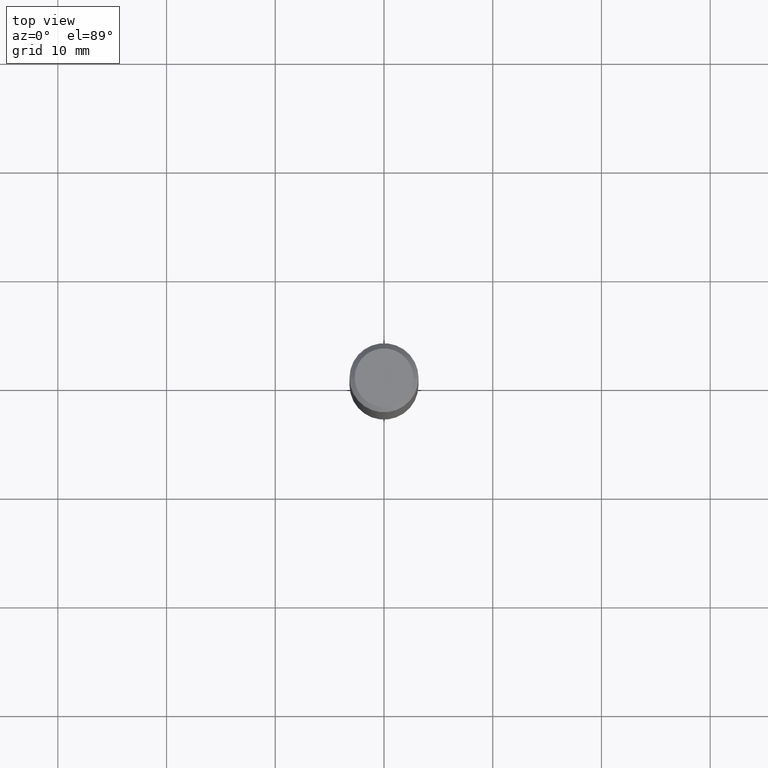
[diagram: clean part render]
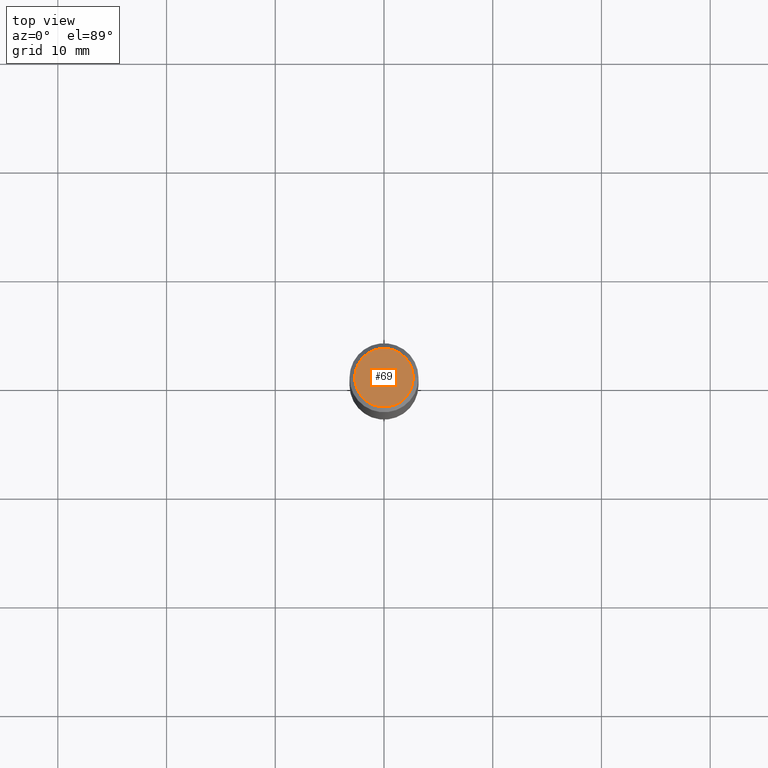
[diagram: same view with one face highlighted and labeled with its STEP entity id]
A machine part, top view. The second image highlights one B-rep face of the part: STEP entity #69.
In plain terms, the highlighted planar face has unit normal (0, -0, -1).
Its self-contained STEP definition (entity closure, byte-faithful):
#44 = FACE_OUTER_BOUND ( 'NONE', #238, .T. ) ;
#45 = AXIS2_PLACEMENT_3D ( 'NONE', #77, #239, #392 ) ;
#69 = ADVANCED_FACE ( 'NONE', ( #44 ), #356, .F. ) ;
#77 = CARTESIAN_POINT ( 'NONE',  ( -1.591006383764329968E-46, 2.271535455632767580E-32, 6.505936120470314915E-18 ) ) ;
#81 = DIRECTION ( 'NONE',  ( -2.445468806185136597E-29, 3.491481338843145583E-15, 1.000000000000000000 ) ) ;
#119 = DIRECTION ( 'NONE',  ( -1.000000000000000000, 6.982962677686265922E-15, -4.876176775795935793E-29 ) ) ;
#139 = EDGE_CURVE ( 'NONE', #172, #446, #259, .T. ) ;
#161 = CARTESIAN_POINT ( 'NONE',  ( -1.591006383764329968E-46, 2.271535455632767580E-32, 6.505936120470314915E-18 ) ) ;
#167 = CARTESIAN_POINT ( 'NONE',  ( 0.1062499999999999972, -8.259777185439879685E-16, 6.505936120475796882E-18 ) ) ;
#172 = VERTEX_POINT ( 'NONE', #167 ) ;
#208 = AXIS2_PLACEMENT_3D ( 'NONE', #161, #81, #435 ) ;
#221 = ORIENTED_EDGE ( 'NONE', *, *, #139, .T. ) ;
#232 = AXIS2_PLACEMENT_3D ( 'NONE', #461, #358, #119 ) ;
#238 = EDGE_LOOP ( 'NONE', ( #451, #221 ) ) ;
#239 = DIRECTION ( 'NONE',  ( -2.445468806185136597E-29, 3.491481338843145583E-15, 1.000000000000000000 ) ) ;
#241 = CARTESIAN_POINT ( 'NONE',  ( -0.1062499999999999972, 7.746724220558198188E-16, 6.505936120465012444E-18 ) ) ;
#259 = CIRCLE ( 'NONE', #45, 0.1062499999999999972 ) ;
#329 = CIRCLE ( 'NONE', #208, 0.1062499999999999972 ) ;
#356 = PLANE ( 'NONE',  #232 ) ;
#358 = DIRECTION ( 'NONE',  ( 2.438088387897960049E-29, -3.491481338843145188E-15, -1.000000000000000000 ) ) ;
#392 = DIRECTION ( 'NONE',  ( 1.000000000000000000, -6.982962677686266711E-15, 4.875930095424100059E-29 ) ) ;
#435 = DIRECTION ( 'NONE',  ( 1.000000000000000000, -6.982962677686266711E-15, 4.875930095424100059E-29 ) ) ;
#446 = VERTEX_POINT ( 'NONE', #241 ) ;
#451 = ORIENTED_EDGE ( 'NONE', *, *, #473, .T. ) ;
#461 = CARTESIAN_POINT ( 'NONE',  ( -7.955031918821649840E-47, 1.135767727816383790E-32, 3.252968060235157457E-18 ) ) ;
#473 = EDGE_CURVE ( 'NONE', #446, #172, #329, .T. ) ;